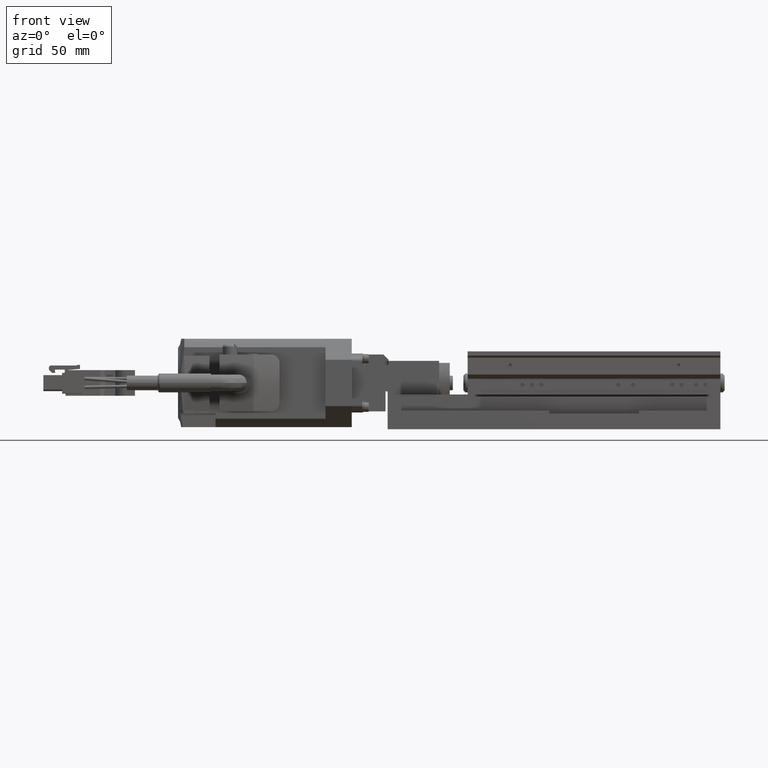
[diagram: clean part render]
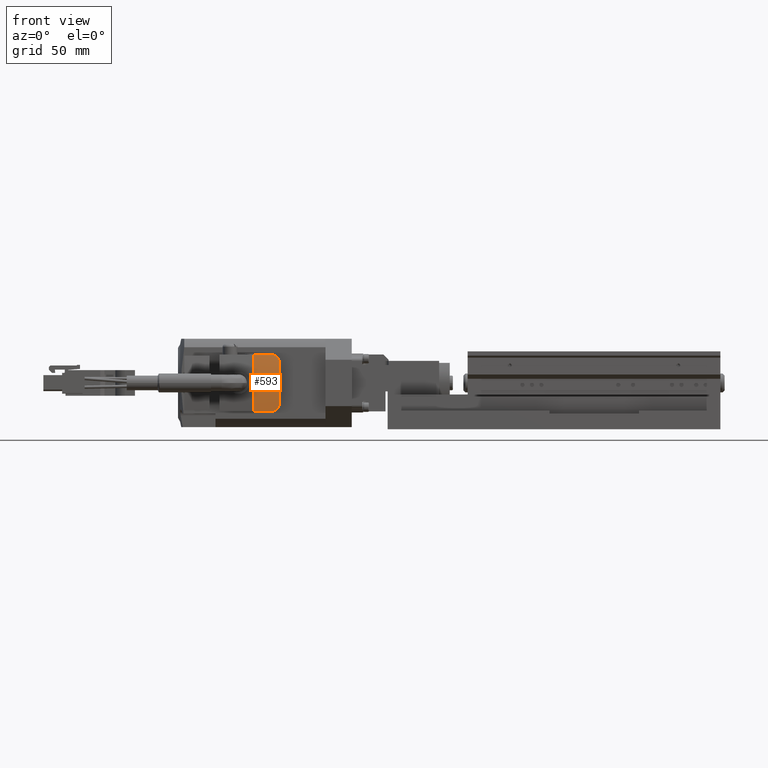
[diagram: same view with one face highlighted and labeled with its STEP entity id]
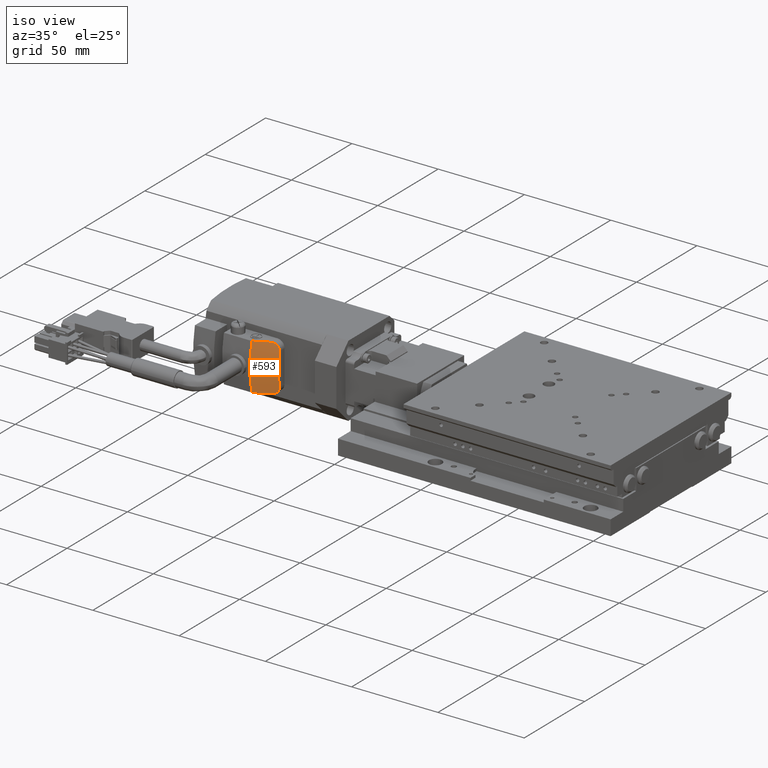
[diagram: same view with one face highlighted and labeled with its STEP entity id]
A machine part, front view. The second image highlights one B-rep face of the part: STEP entity #593.
A second angle (iso view) of the same face is appended — the face is thin or edge-on in the first view.
In plain terms, the highlighted face is a freeform B-spline surface patch.
Its self-contained STEP definition (entity closure, byte-faithful):
#593=ADVANCED_FACE('',(#6311),#6310,.F.);
#6310=( BOUNDED_SURFACE() B_SPLINE_SURFACE( 3,1,((#17480,#17481),(#17482,#17483),(#17484,#17485),(#17486,#17487)), .UNSPECIFIED.,.F.,.F.,.F.) B_SPLINE_SURFACE_WITH_KNOTS((4,4),(2,2),(0.00000000000E+00,1.00000000000E+00),(0.00000000000E+00,1.00000000000E+00), .UNSPECIFIED. ) GEOMETRIC_REPRESENTATION_ITEM() RATIONAL_B_SPLINE_SURFACE(((1.00000000000E+00,1.00000000000E+00),(9.82905842330E-01,9.82905842330E-01),(9.82905842330E-01,9.82905842330E-01),(1.00000000000E+00,1.00000000000E+00))) REPRESENTATION_ITEM('') SURFACE() );
#6311=FACE_OUTER_BOUND('',#17488,.T.);
#17480=CARTESIAN_POINT('',(-1.49299991926E+02,-2.44615153943E+01,3.55000062235E+01));
#17481=CARTESIAN_POINT('',(-1.61599993639E+02,-3.04615118831E+01,3.55000097349E+01));
#17482=CARTESIAN_POINT('',(-1.49299995061E+02,-2.65217330803E+01,2.65782677479E+01));
#17483=CARTESIAN_POINT('',(-1.61599996774E+02,-3.25217295691E+01,2.65782712592E+01));
#17484=CARTESIAN_POINT('',(-1.49299997675E+02,-2.65217330803E+01,1.74217446992E+01));
#17485=CARTESIAN_POINT('',(-1.61599999388E+02,-3.25217295691E+01,1.74217482105E+01));
#17486=CARTESIAN_POINT('',(-1.49299999634E+02,-2.44615153943E+01,8.50000622353E+00));
#17487=CARTESIAN_POINT('',(-1.61600001347E+02,-3.04615118831E+01,8.50000973488E+00));
#17488=EDGE_LOOP('',(#24666,#24667,#24668,#24669,#24670,#24671));
#24666=ORIENTED_EDGE('',*,*,#29807,.F.);
#24667=ORIENTED_EDGE('',*,*,#29808,.T.);
#24668=ORIENTED_EDGE('',*,*,#29809,.F.);
#24669=ORIENTED_EDGE('',*,*,#29810,.T.);
#24670=ORIENTED_EDGE('',*,*,#29811,.T.);
#24671=ORIENTED_EDGE('',*,*,#29812,.T.);
#29807=EDGE_CURVE('',#41114,#41115,#41116,.T.);
#29808=EDGE_CURVE('',#41114,#41122,#41123,.T.);
#29809=EDGE_CURVE('',#41129,#41122,#41130,.T.);
#29810=EDGE_CURVE('',#41129,#41136,#41137,.T.);
#29811=EDGE_CURVE('',#41136,#41143,#41144,.T.);
#29812=EDGE_CURVE('',#41143,#41115,#41150,.T.);
#41114=VERTEX_POINT('',#57833);
#41115=VERTEX_POINT('',#57834);
#41116=LINE('',#57835,#57836);
#41122=VERTEX_POINT('',#57838);
#41123=(BOUNDED_CURVE() B_SPLINE_CURVE(3,(#57839,#57840,#57841,#57842,#57843,#57844,#57845,#57846,#57847,#57848,#57849,#57850,#57851,#57852,#57853,#57854,#57855,#57856,#57857,#57858),.UNSPECIFIED.,.F.,.F.) B_SPLINE_CURVE_WITH_KNOTS((4,2,2,2,2,2,2,2,2,4),(0.00000000000E+00,8.08616176153E-04,1.61723235231E-03,2.42584852846E-03,2.83015661653E-03,3.23446470461E-03,4.04308088076E-03,4.85169705692E-03,5.66031323307E-03,6.46892940922E-03),.UNSPECIFIED.) CURVE() GEOMETRIC_REPRESENTATION_ITEM() RATIONAL_B_SPLINE_CURVE((1.00000000000E+00,1.00000000000E+00,1.00000000000E+00,1.00000000000E+00,1.00000000000E+00,1.00000000000E+00,1.00000000000E+00,1.00000000000E+00,1.00000000000E+00,1.00000000000E+00,1.00000000000E+00,1.00000000000E+00,1.00000000000E+00,1.00000000000E+00,1.00000000000E+00,1.00000000000E+00,1.00000000000E+00,1.00000000000E+00,1.00000000000E+00,1.00000000000E+00)) REPRESENTATION_ITEM('') );
#41129=VERTEX_POINT('',#57859);
#41130=(BOUNDED_CURVE() B_SPLINE_CURVE(3,(#57860,#57861,#57862,#57863),.UNSPECIFIED.,.F.,.F.) B_SPLINE_CURVE_WITH_KNOTS((4,4),(0.00000000000E+00,1.90989863025E-02),.UNSPECIFIED.) CURVE() GEOMETRIC_REPRESENTATION_ITEM() RATIONAL_B_SPLINE_CURVE((9.93445180718E-01,9.85090782091E-01,9.85090782091E-01,9.93445180718E-01)) REPRESENTATION_ITEM('') );
#41136=VERTEX_POINT('',#57864);
#41137=(BOUNDED_CURVE() B_SPLINE_CURVE(3,(#57865,#57866,#57867,#57868,#57869,#57870,#57871,#57872,#57873,#57874,#57875,#57876,#57877,#57878,#57879,#57880,#57881,#57882),.UNSPECIFIED.,.F.,.F.) B_SPLINE_CURVE_WITH_KNOTS((4,2,2,2,2,2,2,2,4),(0.00000000000E+00,8.09431709551E-04,1.61886341910E-03,2.42829512865E-03,3.23772683821E-03,4.04715854776E-03,4.85659025731E-03,5.66602196686E-03,6.47545367641E-03),.UNSPECIFIED.) CURVE() GEOMETRIC_REPRESENTATION_ITEM() RATIONAL_B_SPLINE_CURVE((1.00000000000E+00,1.00000000000E+00,1.00000000000E+00,1.00000000000E+00,1.00000000000E+00,1.00000000000E+00,1.00000000000E+00,1.00000000000E+00,1.00000000000E+00,1.00000000000E+00,1.00000000000E+00,1.00000000000E+00,1.00000000000E+00,1.00000000000E+00,1.00000000000E+00,1.00000000000E+00,1.00000000000E+00,1.00000000000E+00)) REPRESENTATION_ITEM('') );
#41143=VERTEX_POINT('',#57883);
#41144=LINE('',#57884,#57885);
#41150=CIRCLE('',#57890,6.00000000000E+01);
#57833=CARTESIAN_POINT('',(-1.53300000191E+02,-2.64127337647E+01,8.50000736543E+00));
#57834=CARTESIAN_POINT('',(-1.61600001347E+02,-3.04615118831E+01,8.50000973488E+00));
#57835=CARTESIAN_POINT('',(-1.53300000191E+02,-2.64127337647E+01,8.50000736543E+00));
#57836=VECTOR('',#57837,9.23485914557E+00);
#57837=DIRECTION('',(-8.98768570799E-01,-4.38423375454E-01,2.56576884747E-07));
#57838=CARTESIAN_POINT('',(-1.49299998715E+02,-2.52431326478E+01,1.25000062235E+01));
#57839=CARTESIAN_POINT('',(-1.53300000191E+02,-2.64127337647E+01,8.50000736543E+00));
#57840=CARTESIAN_POINT('',(-1.53054540478E+02,-2.62929974059E+01,8.50000729536E+00));
#57841=CARTESIAN_POINT('',(-1.52810394253E+02,-2.61790891613E+01,8.52241098559E+00));
#57842=CARTESIAN_POINT('',(-1.52324837754E+02,-2.59630050846E+01,8.61284304526E+00));
#57843=CARTESIAN_POINT('',(-1.52081693682E+02,-2.58601354602E+01,8.68152472932E+00));
#57844=CARTESIAN_POINT('',(-1.51606484939E+02,-2.56702927485E+01,8.86722772680E+00));
#57845=CARTESIAN_POINT('',(-1.51378450772E+02,-2.55848447612E+01,8.98230369389E+00));
#57846=CARTESIAN_POINT('',(-1.51051412835E+02,-2.54708180057E+01,9.18934160959E+00));
#57847=CARTESIAN_POINT('',(-1.50944918585E+02,-2.54351800121E+01,9.26412752398E+00));
#57848=CARTESIAN_POINT('',(-1.50737306301E+02,-2.53688187993E+01,9.42593377597E+00));
#57849=CARTESIAN_POINT('',(-1.50635763471E+02,-2.53379916999E+01,9.51345293188E+00));
#57850=CARTESIAN_POINT('',(-1.50347263337E+02,-2.52553435007E+01,9.78855358175E+00));
#57851=CARTESIAN_POINT('',(-1.50173934205E+02,-2.52124519906E+01,9.99006826934E+00));
#57852=CARTESIAN_POINT('',(-1.49866566490E+02,-2.51507443129E+01,1.04303173240E+01));
#57853=CARTESIAN_POINT('',(-1.49732228488E+02,-2.51321820366E+01,1.06713537058E+01));
#57854=CARTESIAN_POINT('',(-1.49518772093E+02,-2.51213073094E+01,1.11676095736E+01));
#57855=CARTESIAN_POINT('',(-1.49437351613E+02,-2.51284294881E+01,1.14254985017E+01));
#57856=CARTESIAN_POINT('',(-1.49327138601E+02,-2.51679699636E+01,1.19605684261E+01));
#57857=CARTESIAN_POINT('',(-1.49299998780E+02,-2.51997665221E+01,1.22295698462E+01));
#57858=CARTESIAN_POINT('',(-1.49299998715E+02,-2.52431326478E+01,1.25000062235E+01));
#57859=CARTESIAN_POINT('',(-1.49299993291E+02,-2.52431326478E+01,3.15000062235E+01));
#57860=CARTESIAN_POINT('',(-1.49299993291E+02,-2.52431326478E+01,3.15000062235E+01));
#57861=CARTESIAN_POINT('',(-1.49299995380E+02,-2.62544148248E+01,2.51935288878E+01));
#57862=CARTESIAN_POINT('',(-1.49299997204E+02,-2.62544148248E+01,1.88064835593E+01));
#57863=CARTESIAN_POINT('',(-1.49299998715E+02,-2.52431326478E+01,1.25000062235E+01));
#57864=CARTESIAN_POINT('',(-1.53299992483E+02,-2.64127337647E+01,3.55000073654E+01));
#57865=CARTESIAN_POINT('',(-1.49299993291E+02,-2.52431326478E+01,3.15000062235E+01));
#57866=CARTESIAN_POINT('',(-1.49299993202E+02,-2.51998151682E+01,3.17701392379E+01));
#57867=CARTESIAN_POINT('',(-1.49327079453E+02,-2.51683106528E+01,3.20371860912E+01));
#57868=CARTESIAN_POINT('',(-1.49435018736E+02,-2.51289497395E+01,3.25651726664E+01));
#57869=CARTESIAN_POINT('',(-1.49517448521E+02,-2.51213486911E+01,3.28286806025E+01));
#57870=CARTESIAN_POINT('',(-1.49730515122E+02,-2.51319881074E+01,3.33253410536E+01));
#57871=CARTESIAN_POINT('',(-1.49861105177E+02,-2.51498015641E+01,3.35610026048E+01));
#57872=CARTESIAN_POINT('',(-1.50171006015E+02,-2.52117172076E+01,3.40066168954E+01));
#57873=CARTESIAN_POINT('',(-1.50345810617E+02,-2.52549866768E+01,3.42097734898E+01));
#57874=CARTESIAN_POINT('',(-1.50728534295E+02,-2.53645136903E+01,3.45753327451E+01));
#57875=CARTESIAN_POINT('',(-1.50939396624E+02,-2.54317949245E+01,3.47396114316E+01));
#57876=CARTESIAN_POINT('',(-1.51378135602E+02,-2.55847071526E+01,3.50176648291E+01));
#57877=CARTESIAN_POINT('',(-1.51607003406E+02,-2.56704916226E+01,3.51330433675E+01));
#57878=CARTESIAN_POINT('',(-1.52082570328E+02,-2.58604999911E+01,3.53187829093E+01));
#57879=CARTESIAN_POINT('',(-1.52325313176E+02,-2.59632150031E+01,3.53872833415E+01));
#57880=CARTESIAN_POINT('',(-1.52810600842E+02,-2.61791895873E+01,3.54776210988E+01));
#57881=CARTESIAN_POINT('',(-1.53054630684E+02,-2.62930451686E+01,3.55000072954E+01));
#57882=CARTESIAN_POINT('',(-1.53299992483E+02,-2.64127337647E+01,3.55000073654E+01));
#57883=CARTESIAN_POINT('',(-1.61599993639E+02,-3.04615118831E+01,3.55000097349E+01));
#57884=CARTESIAN_POINT('',(-1.53299992483E+02,-2.64127337647E+01,3.55000073654E+01));
#57885=VECTOR('',#57886,9.23485914557E+00);
#57886=DIRECTION('',(-8.98768570799E-01,-4.38423375454E-01,2.56576884363E-07));
#57887=CARTESIAN_POINT('',(-1.61599980804E+02,2.80000139266E+01,2.20000097349E+01));
#57888=DIRECTION('',(1.00000000000E+00,-2.85465837313E-07,-2.85476031338E-07));
#57889=DIRECTION('',(2.13914033214E-07,9.74358763495E-01,-2.25000000000E-01));
#57890=AXIS2_PLACEMENT_3D('',#57887,#57888,#57889);